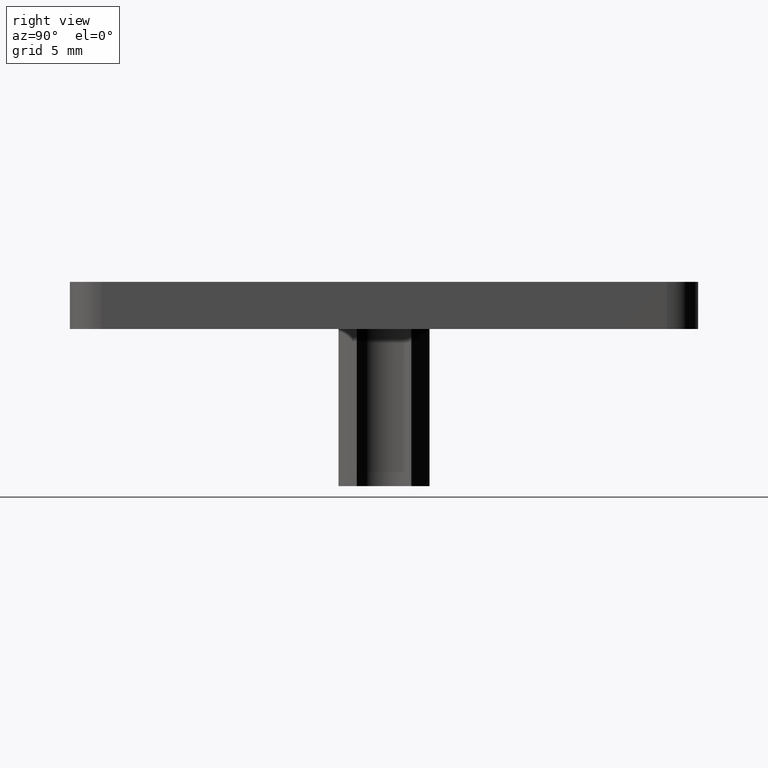
[diagram: clean part render]
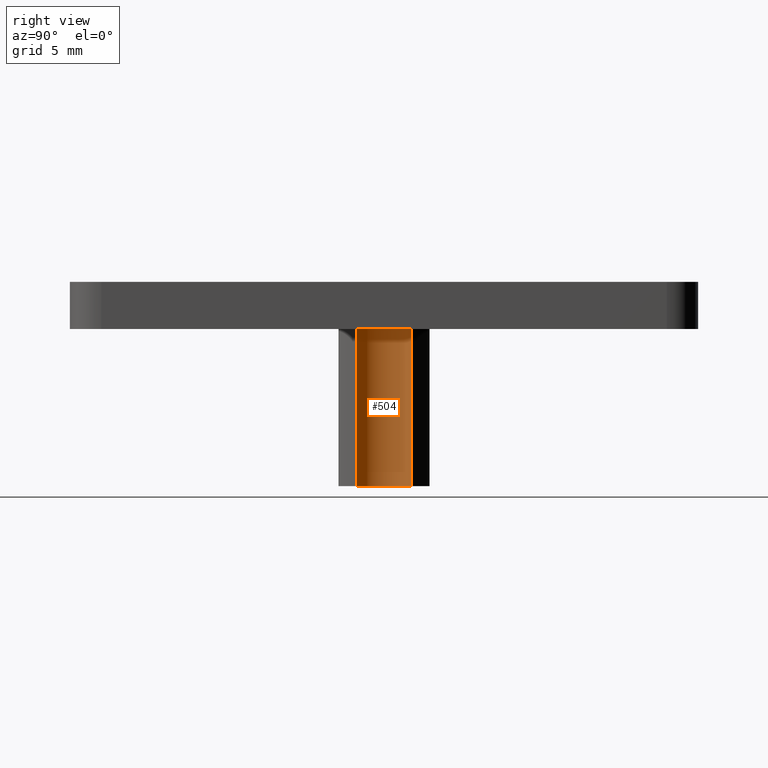
[diagram: same view with one face highlighted and labeled with its STEP entity id]
A machine part, right view. The second image highlights one B-rep face of the part: STEP entity #504.
In plain terms, the highlighted cylindrical surface (edge-blend (fillet) strip) has radius 1.85 mm, axis along (-0, 0, 1).
Its self-contained STEP definition (entity closure, byte-faithful):
#352=CARTESIAN_POINT('',(12.895000009413444,-1.734819859667306,1.579182E-015));
#353=VERTEX_POINT('',#352);
#361=CARTESIAN_POINT('',(12.895000009413444,1.734819859667312,1.579182E-015));
#362=VERTEX_POINT('',#361);
#363=CARTESIAN_POINT('',(13.537573004880823,3.552714E-015,1.657875E-015));
#364=DIRECTION('',(-1.224647E-016,0.0,1.0));
#365=DIRECTION('',(0.0,1.0,0.0));
#366=AXIS2_PLACEMENT_3D('',#363,#364,#365);
#367=CIRCLE('',#366,1.850000000000003);
#368=EDGE_CURVE('',#362,#353,#367,.T.);
#461=CARTESIAN_POINT('',(12.895000009413446,1.734819859667312,-9.999999999999998));
#462=VERTEX_POINT('',#461);
#463=CARTESIAN_POINT('',(12.895000009413446,1.734819859667312,-9.999999999999998));
#464=DIRECTION('',(0.0,0.0,1.0));
#465=VECTOR('',#464,10.0);
#466=LINE('',#463,#465);
#467=EDGE_CURVE('',#462,#362,#466,.T.);
#480=CARTESIAN_POINT('',(13.537573004880825,3.552714E-015,-10.000000009999997));
#481=DIRECTION('',(-1.224647E-016,0.0,1.0));
#482=DIRECTION('',(1.0,0.0,1.224647E-016));
#483=AXIS2_PLACEMENT_3D('',#480,#481,#482);
#484=CYLINDRICAL_SURFACE('',#483,1.850000000000004);
#485=ORIENTED_EDGE('',*,*,#368,.T.);
#486=CARTESIAN_POINT('',(12.895000009413446,-1.734819859667306,-9.999999999999998));
#487=VERTEX_POINT('',#486);
#488=CARTESIAN_POINT('',(12.895000009413446,-1.734819859667306,-9.999999999999998));
#489=DIRECTION('',(0.0,0.0,1.0));
#490=VECTOR('',#489,10.0);
#491=LINE('',#488,#490);
#492=EDGE_CURVE('',#487,#353,#491,.T.);
#493=ORIENTED_EDGE('',*,*,#492,.F.);
#494=CARTESIAN_POINT('',(13.537573004880825,3.552714E-015,-9.999999999999998));
#495=DIRECTION('',(-1.224647E-016,0.0,1.0));
#496=DIRECTION('',(0.0,1.0,0.0));
#497=AXIS2_PLACEMENT_3D('',#494,#495,#496);
#498=CIRCLE('',#497,1.850000000000003);
#499=EDGE_CURVE('',#462,#487,#498,.T.);
#500=ORIENTED_EDGE('',*,*,#499,.F.);
#501=ORIENTED_EDGE('',*,*,#467,.T.);
#502=EDGE_LOOP('',(#485,#493,#500,#501));
#503=FACE_OUTER_BOUND('',#502,.T.);
#504=ADVANCED_FACE('',(#503),#484,.F.);